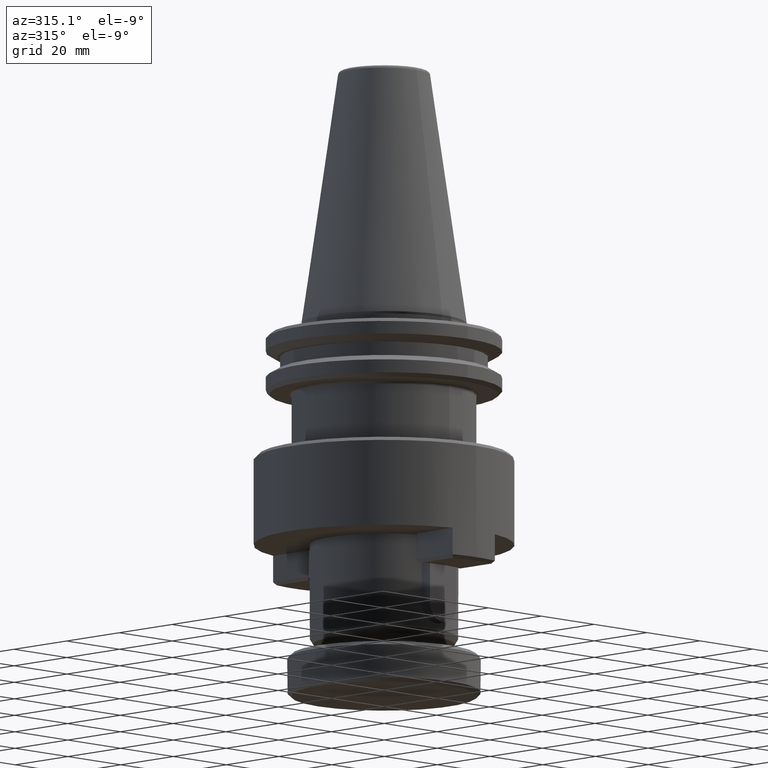
[diagram: clean part render]
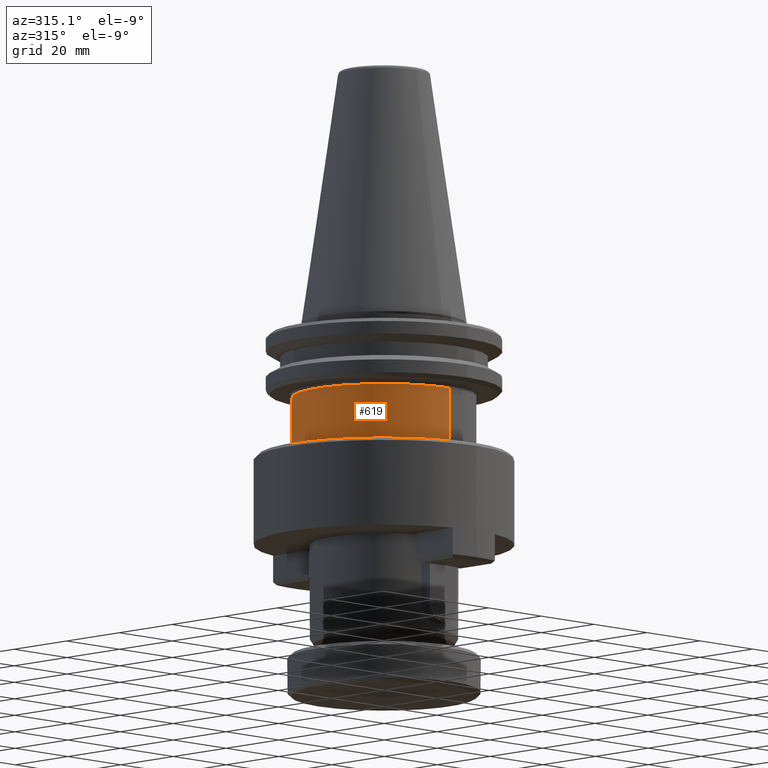
[diagram: same view with one face highlighted and labeled with its STEP entity id]
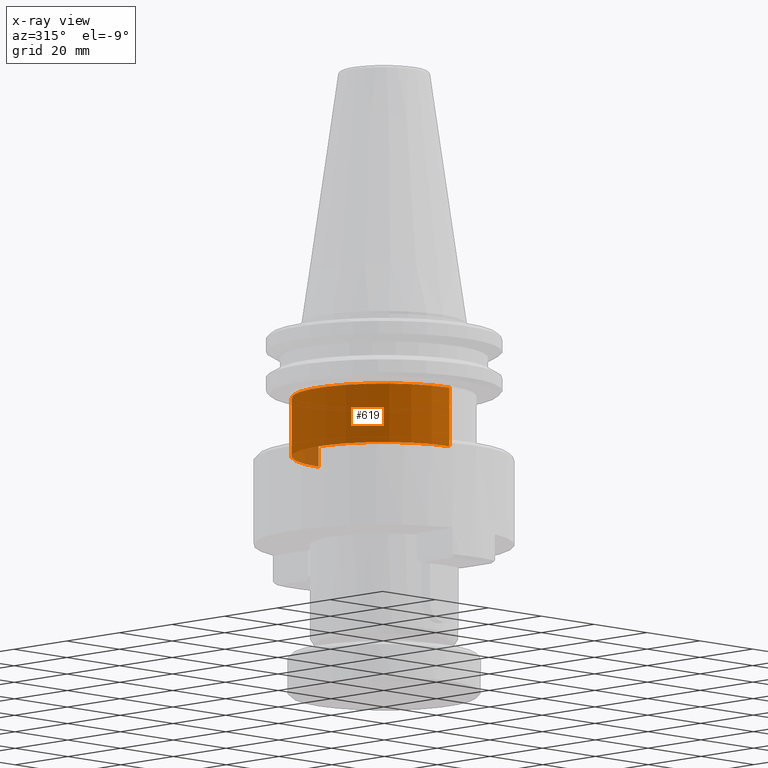
[diagram: x-ray of the same camera — body ghosted, the highlighted face saturated]
A machine part, auxiliary view. The second image highlights one B-rep face of the part: STEP entity #619.
The next image is the same camera in x-ray: the body ghosted, the highlighted face saturated — about 4% of this face is hidden behind the body in this view.
In plain terms, the highlighted cylindrical surface (partial cylindrical patch) has radius 24.8094 mm, axis along (-0, 0, 1).
Its self-contained STEP definition (entity closure, byte-faithful):
#122 = DIRECTION ( 'NONE',  ( -0.0000000000000000000, 6.500853926474174700E-029, 1.000000000000000000 ) ) ;
#127 = CARTESIAN_POINT ( 'NONE',  ( 0.0000000000000000000, -24.80939795643629600, 69.34934271251106000 ) ) ;
#133 = CARTESIAN_POINT ( 'NONE',  ( 0.0000000000000000000, -24.80939795643629600, -36.00000000000002100 ) ) ;
#144 = ORIENTED_EDGE ( 'NONE', *, *, #1712, .T. ) ;
#214 = LINE ( 'NONE', #1400, #236 ) ;
#236 = VECTOR ( 'NONE', #1388, 1000.000000000000000 ) ;
#309 = ORIENTED_EDGE ( 'NONE', *, *, #1587, .T. ) ;
#370 = ORIENTED_EDGE ( 'NONE', *, *, #1659, .F. ) ;
#461 = AXIS2_PLACEMENT_3D ( 'NONE', #2326, #2100, #2281 ) ;
#535 = AXIS2_PLACEMENT_3D ( 'NONE', #1769, #1583, #1682 ) ;
#619 = ADVANCED_FACE ( 'NONE', ( #744 ), #740, .T. ) ;
#740 = CYLINDRICAL_SURFACE ( 'NONE', #1080, 24.80939795643629600 ) ;
#744 = FACE_OUTER_BOUND ( 'NONE', #1024, .T. ) ;
#880 = ORIENTED_EDGE ( 'NONE', *, *, #2452, .F. ) ;
#993 = DIRECTION ( 'NONE',  ( -0.0000000000000000000, 6.500853926474174700E-029, 1.000000000000000000 ) ) ;
#1011 = CARTESIAN_POINT ( 'NONE',  ( 0.0000000000000000000, 0.0000000000000000000, 69.34934271251106000 ) ) ;
#1024 = EDGE_LOOP ( 'NONE', ( #880, #144, #309, #370 ) ) ;
#1067 = DIRECTION ( 'NONE',  ( 0.0000000000000000000, -1.000000000000000000, 0.0000000000000000000 ) ) ;
#1080 = AXIS2_PLACEMENT_3D ( 'NONE', #1011, #993, #1067 ) ;
#1388 = DIRECTION ( 'NONE',  ( -0.0000000000000000000, 6.500853926474174700E-029, 1.000000000000000000 ) ) ;
#1400 = CARTESIAN_POINT ( 'NONE',  ( 3.038274979612259300E-015, 24.80939795643629600, 69.34934271251106000 ) ) ;
#1453 = VERTEX_POINT ( 'NONE', #2282 ) ;
#1489 = VERTEX_POINT ( 'NONE', #1860 ) ;
#1537 = CIRCLE ( 'NONE', #461, 24.80939795643629600 ) ;
#1583 = DIRECTION ( 'NONE',  ( -0.0000000000000000000, 6.500853926474174700E-029, 1.000000000000000000 ) ) ;
#1587 = EDGE_CURVE ( 'NONE', #1596, #1489, #1933, .T. ) ;
#1596 = VERTEX_POINT ( 'NONE', #133 ) ;
#1635 = CIRCLE ( 'NONE', #535, 24.80939795643629300 ) ;
#1659 = EDGE_CURVE ( 'NONE', #2226, #1489, #1635, .T. ) ;
#1682 = DIRECTION ( 'NONE',  ( 0.0000000000000000000, -1.000000000000000000, 0.0000000000000000000 ) ) ;
#1712 = EDGE_CURVE ( 'NONE', #1453, #1596, #1537, .T. ) ;
#1769 = CARTESIAN_POINT ( 'NONE',  ( 0.0000000000000000000, -5.814971107931614800E-027, -20.09999999999998000 ) ) ;
#1860 = CARTESIAN_POINT ( 'NONE',  ( 0.0000000000000000000, -24.80939795643629300, -20.09999999999998000 ) ) ;
#1889 = VECTOR ( 'NONE', #122, 1000.000000000000000 ) ;
#1908 = CARTESIAN_POINT ( 'NONE',  ( 3.099507319569626500E-015, 24.80939795643629300, -20.09999999999998000 ) ) ;
#1933 = LINE ( 'NONE', #127, #1889 ) ;
#2100 = DIRECTION ( 'NONE',  ( -0.0000000000000000000, 6.500853926474174700E-029, 1.000000000000000000 ) ) ;
#2226 = VERTEX_POINT ( 'NONE', #1908 ) ;
#2281 = DIRECTION ( 'NONE',  ( 0.0000000000000000000, -1.000000000000000000, 0.0000000000000000000 ) ) ;
#2282 = CARTESIAN_POINT ( 'NONE',  ( 3.038274979612259300E-015, 24.80939795643629600, -36.00000000000002100 ) ) ;
#2326 = CARTESIAN_POINT ( 'NONE',  ( 0.0000000000000000000, -6.848606882241010700E-027, -36.00000000000002100 ) ) ;
#2452 = EDGE_CURVE ( 'NONE', #1453, #2226, #214, .T. ) ;